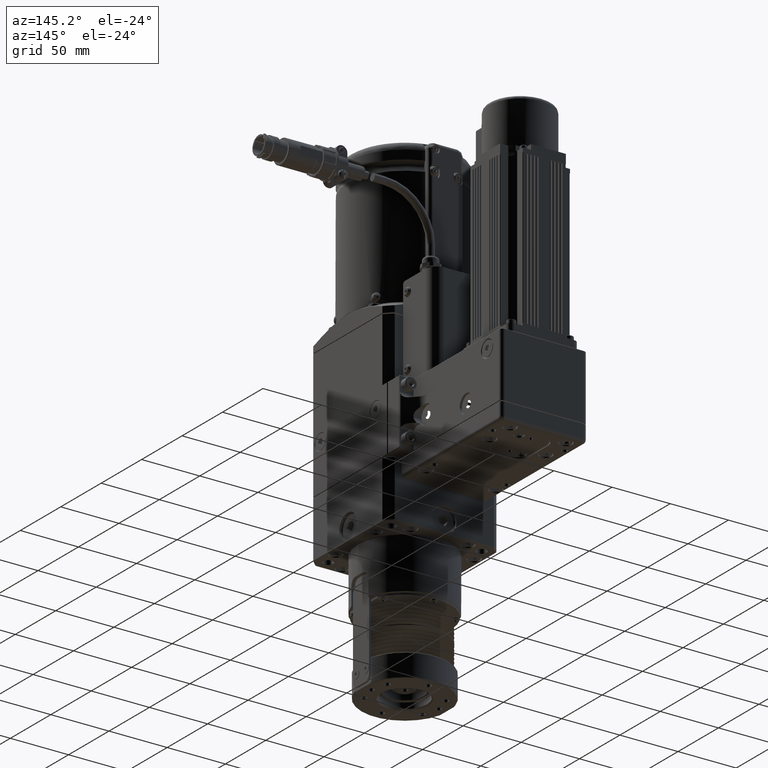
[diagram: clean part render]
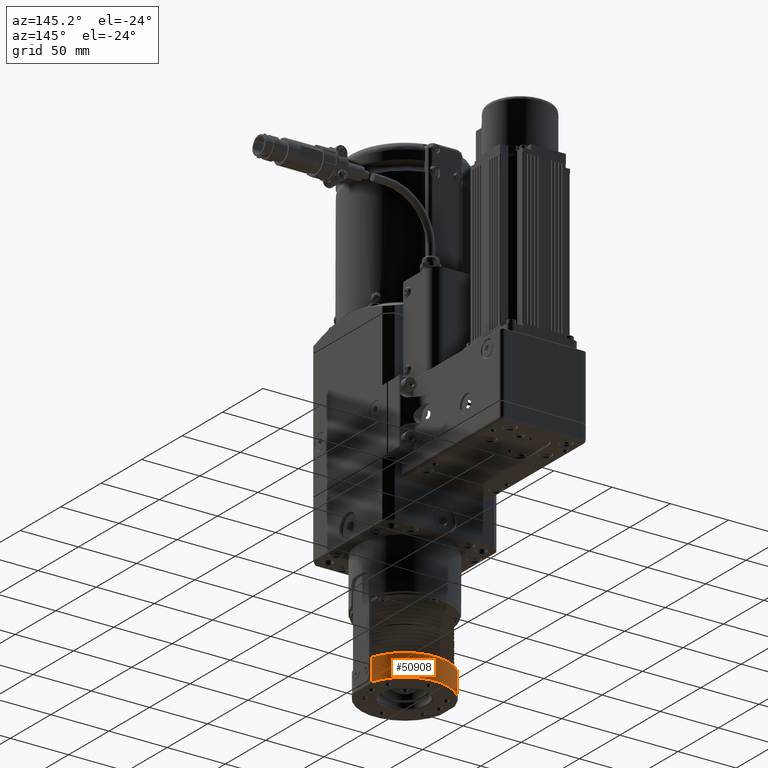
[diagram: same view with one face highlighted and labeled with its STEP entity id]
A machine part, auxiliary view. The second image highlights one B-rep face of the part: STEP entity #50908.
In plain terms, the highlighted cylindrical surface (partial cylindrical patch) has radius 37.5 mm, axis along (-0, -0, 1).
Its self-contained STEP definition (entity closure, byte-faithful):
#1291=CYLINDRICAL_SURFACE('',#55373,37.5);
#4534=FACE_OUTER_BOUND('',#7683,.T.);
#7683=EDGE_LOOP('',(#41550,#41551,#41552,#41553));
#9227=LINE('',#72559,#13449);
#11658=LINE('',#84374,#15880);
#13449=VECTOR('',#57921,10.);
#15880=VECTOR('',#66422,10.);
#18846=CIRCLE('',#55374,37.5);
#18847=CIRCLE('',#55375,37.5);
#20047=VERTEX_POINT('',#72554);
#20048=VERTEX_POINT('',#72558);
#22733=VERTEX_POINT('',#84370);
#22734=VERTEX_POINT('',#84372);
#25107=EDGE_CURVE('',#20048,#20047,#9227,.T.);
#29367=EDGE_CURVE('',#20048,#22733,#18846,.T.);
#29368=EDGE_CURVE('',#22734,#20047,#18847,.T.);
#29369=EDGE_CURVE('',#22734,#22733,#11658,.T.);
#41550=ORIENTED_EDGE('',*,*,#29367,.F.);
#41551=ORIENTED_EDGE('',*,*,#25107,.T.);
#41552=ORIENTED_EDGE('',*,*,#29368,.F.);
#41553=ORIENTED_EDGE('',*,*,#29369,.T.);
#50908=ADVANCED_FACE('',(#4534),#1291,.T.);
#55373=AXIS2_PLACEMENT_3D('',#84369,#66416,#66417);
#55374=AXIS2_PLACEMENT_3D('',#84371,#66418,#66419);
#55375=AXIS2_PLACEMENT_3D('',#84373,#66420,#66421);
#57921=DIRECTION('',(7.94341904815019E-16,2.40487134188145E-15,-1.));
#66416=DIRECTION('center_axis',(-7.94341904815019E-16,-2.40487134188145E-15,
1.));
#66417=DIRECTION('ref_axis',(-1.,1.60045057544859E-16,-7.94341904815018E-16));
#66418=DIRECTION('center_axis',(-7.94341904815019E-16,-2.40487134188145E-15,
1.));
#66419=DIRECTION('ref_axis',(-1.,1.60045057544859E-16,-7.94341904815018E-16));
#66420=DIRECTION('center_axis',(7.94341904815019E-16,2.40487134188145E-15,
-1.));
#66421=DIRECTION('ref_axis',(-1.,1.60045057544859E-16,-7.94341904815018E-16));
#66422=DIRECTION('',(-7.94341904815019E-16,-2.40487134188145E-15,1.));
#72554=CARTESIAN_POINT('',(36.,10.5,-64.5000000000001));
#72558=CARTESIAN_POINT('',(36.,10.5,-45.5000000000001));
#72559=CARTESIAN_POINT('',(36.,10.5,-65.0000000000001));
#84369=CARTESIAN_POINT('Origin',(7.88860905221005E-30,-1.53485670364268E-28,
-65.0000000000001));
#84370=CARTESIAN_POINT('',(-36.,10.4999999999999,-45.5000000000001));
#84371=CARTESIAN_POINT('Origin',(-1.54896671438929E-14,-4.68949911666884E-14,
-45.5000000000001));
#84372=CARTESIAN_POINT('',(-36.,10.5,-64.5000000000001));
#84373=CARTESIAN_POINT('Origin',(-3.97170952407501E-16,-1.20243567094088E-15,
-64.5000000000001));
#84374=CARTESIAN_POINT('',(-36.,10.5,-65.0000000000001));